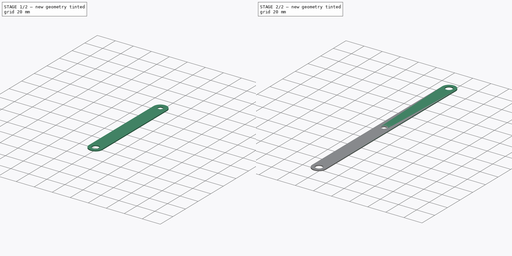
[diagram: build sequence overview — one tinted view per stage of 2, left to right]
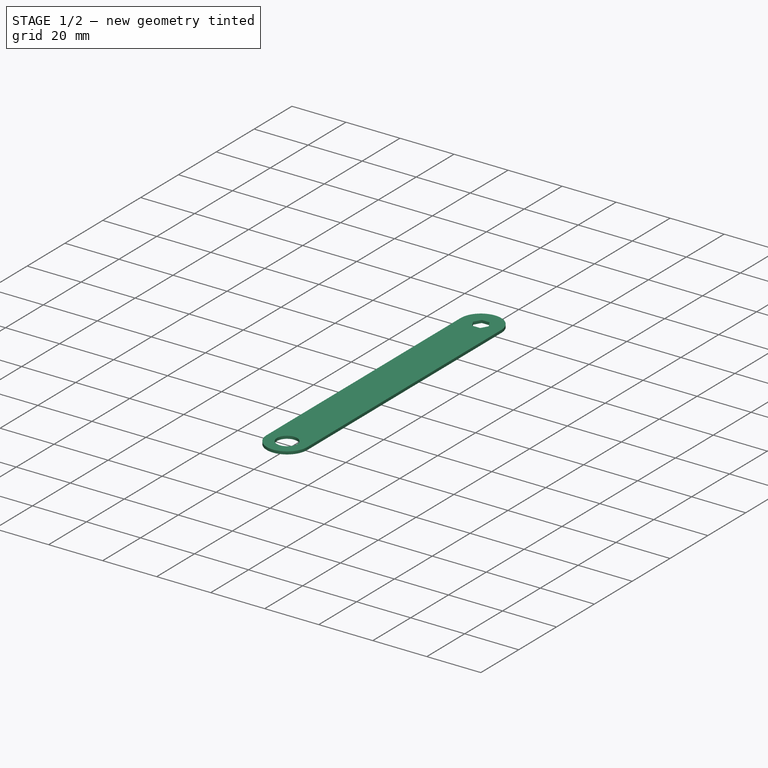
[diagram: stage 1 of 2 — iso view after this stage's code; geometry added in this stage tinted green]
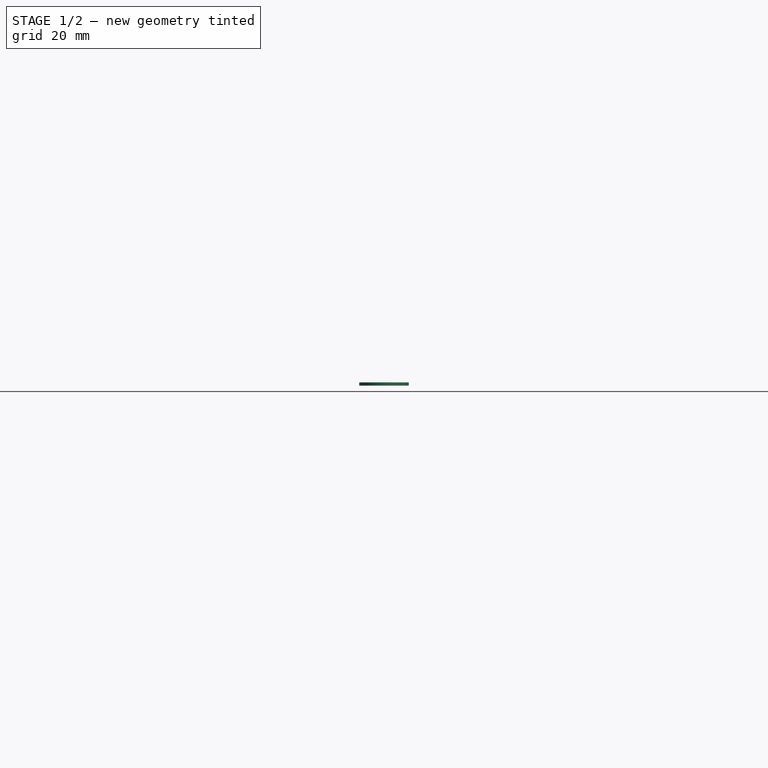
[diagram: stage 1 of 2 — front view after this stage's code; geometry added in this stage tinted green]
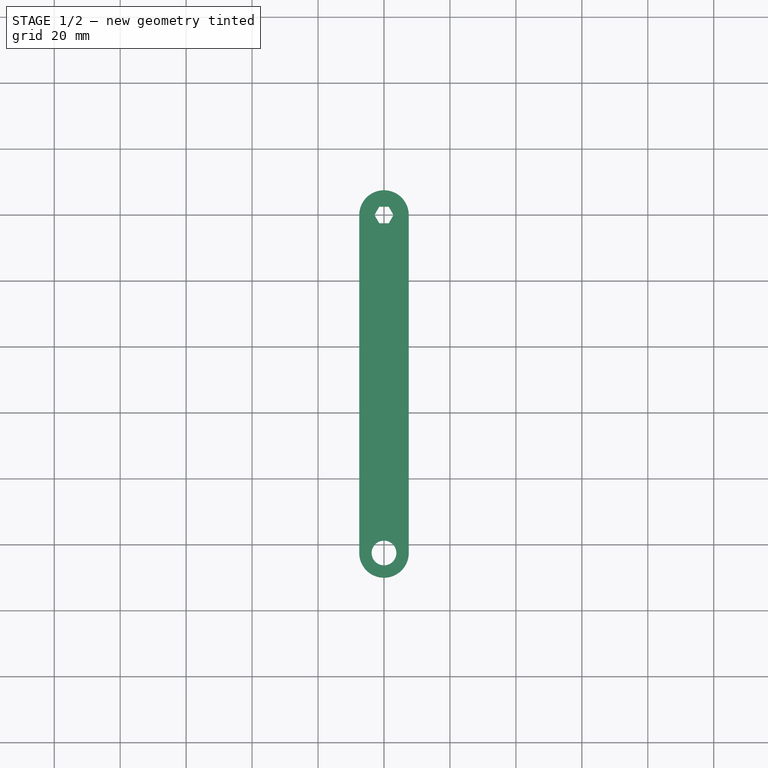
[diagram: stage 1 of 2 — top view after this stage's code; geometry added in this stage tinted green]
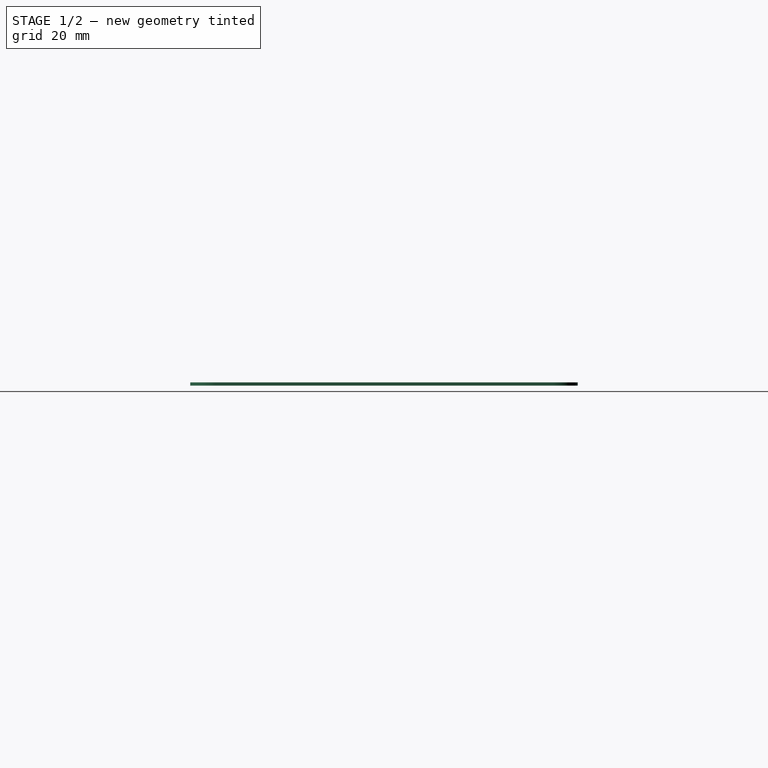
[diagram: stage 1 of 2 — right view after this stage's code; geometry added in this stage tinted green]
FCSTD DOCUMENT  (FreeCAD 0.20R7_voidlinux)
Label: Arm
License: All rights reserved
LicenseURL: http://en.wikipedia.org/wiki/All_rights_reserved
objects: Sketcher::SketchObject×3, PartDesign::Pad×3, PartDesign::Body×3, Spreadsheet::Sheet×1
note: 12 computed .brp shape members not serialized (recipe doc carries the construction recipe); baked Part::Feature solids carry a one-line shape summary decoded from their .brp

FEATURE [PartDesign::Body] Body  label="FullLength"
  Group = -> [Sketch,Pad]
  Origin = -> Origin
  Tip = -> Pad
FEATURE [Sketcher::SketchObject] Sketch001
  FullyConstrained = true
  MapMode = 5
  Support = -> [XY_Plane001]
  expr: Constraints[10] = Spreadsheet.Length / 2
  expr: Constraints[13] = Spreadsheet.Width / 2
  expr: Constraints[32] = Spreadsheet.HoleRadius
  expr: Constraints[34] = Spreadsheet.HoleRadius
  expr: Constraints[39] = Spreadsheet.HoleRadius
  expr: Constraints[6] = Spreadsheet.Width
  sketch-geometry (15):
    g0: Circle CenterX=0 CenterY=0 CenterZ=0 NormalX=0 NormalY=0 NormalZ=1 AngleXU=0 Radius=7.5
    g1: LineSegment StartX=0 StartY=0 StartZ=0 EndX=7.5 EndY=0 EndZ=0
    g2: LineSegment StartX=0 StartY=0 StartZ=0 EndX=-7.5 EndY=1e-15 EndZ=0
    g3: LineSegment StartX=7.5 StartY=0 StartZ=0 EndX=7.5 EndY=-110 EndZ=0
    g4: LineSegment StartX=7.5 StartY=-110 StartZ=0 EndX=0 EndY=-110 EndZ=0
    g5: LineSegment StartX=0 StartY=-110 StartZ=0 EndX=0 EndY=-102.5 EndZ=0
    g6: Circle CenterX=0 CenterY=-102.5 CenterZ=0 NormalX=0 NormalY=0 NormalZ=1 AngleXU=0 Radius=7.5
    g7: LineSegment StartX=-7.5 StartY=1e-15 StartZ=0 EndX=-7.5 EndY=-102.5 EndZ=0
    g8: LineSegment StartX=7.5 StartY=0 StartZ=0 EndX=7.5 EndY=-102.5 EndZ=0
    g9: ArcOfCircle CenterX=0 CenterY=0 CenterZ=0 NormalX=0 NormalY=0 NormalZ=1 AngleXU=0 Radius=7.5 StartAngle=0 EndAngle=3.14159
    g10: ArcOfCircle CenterX=-7e-16 CenterY=-102.5 CenterZ=0 NormalX=0 NormalY=0 NormalZ=1 AngleXU=0 Radius=7.5 StartAngle=3.14159 EndAngle=6.28319
    g11: Circle CenterX=-7e-16 CenterY=-102.5 CenterZ=0 NormalX=0 NormalY=0 NormalZ=1 AngleXU=0 Radius=3.75
    g12: LineSegment StartX=-7e-16 StartY=-102.5 StartZ=0 EndX=-7e-16 EndY=-98.75 EndZ=0
    g13: Circle CenterX=0 CenterY=0 CenterZ=0 NormalX=0 NormalY=0 NormalZ=1 AngleXU=0 Radius=3.75
    g14: LineSegment StartX=0 StartY=0 StartZ=0 EndX=0 EndY=3.75 EndZ=0
  constraints (41):
    c: Coincident(g0,g-1)
    c: Coincident(g1,g0)
    c: PointOnObject(g1,g0)
    c: Horizontal(g1)
    c: Coincident(g2,g0)
    c: PointOnObject(g2,g-1)
    c: Distance(g2,g1) = 15
    c: PointOnObject(g2,g0)
    c: Coincident(g3,g1)
    c: Vertical(g3)
    c: Distance(g3) = 110
    c: Coincident(g4,g3)
    c: Horizontal(g4)
    c: Distance(g4) = 7.5
    c: Coincident(g5,g4)
    c: PointOnObject(g5,g-2)
    c: Equal(g5,g4)
    c: Coincident(g6,g5)
    c: Tangent(g6,g3)
    c: Coincident(g7,g2)
    c: PointOnObject(g7,g6)
    c: Vertical(g7)
    c: Coincident(g8,g1)
    c: PointOnObject(g8,g6)
    c: Vertical(g8)
    c: Coincident(g9,g7)
    c: Coincident(g9,g8)
    c: Tangent(g9,g0)
    c: Coincident(g10,g7)
    c: Coincident(g10,g8)
    c: Tangent(g10,g6)
    c: Coincident(g12,g10)
    c: PointOnObject(g12,g11) = 3.75
    c: Vertical(g12)
    c: Distance(g12) = 3.75
    c: Coincident(g13,g9)
    c: Coincident(g14,g9)
    c: PointOnObject(g14,g13)
    c: Vertical(g14)
    c: Distance(g14) = 3.75
    c: Coincident(g11,g10)
FEATURE [PartDesign::Pad] Pad001
  Direction = (0,0,1)
  Length = 1
  Length2 = 10
  Profile = -> Sketch001
  ReferenceAxis = -> Sketch001 [N_Axis]
  Type = 0
  expr: Length = Spreadsheet.Thickness
FEATURE [PartDesign::Body] Body001  label="HalfLength"
  Group = -> [Sketch001,Pad001]
  Origin = -> Origin001
  Placement = pos=(20,0,0) rot=(0,0,1;0rad)
  Tip = -> Pad001
FEATURE [Sketcher::SketchObject] Sketch002
  FullyConstrained = true
  MapMode = 5
  Support = -> [XY_Plane002]
  expr: Constraints[10] = Spreadsheet.Length / 2
  expr: Constraints[13] = Spreadsheet.Width / 2
  expr: Constraints[38] = Spreadsheet.AxleSize
  expr: Constraints[43] = Spreadsheet.HoleRadius
  expr: Constraints[6] = Spreadsheet.Width
  sketch-geometry (20):
    g0: Circle CenterX=0 CenterY=-5e-16 CenterZ=0 NormalX=0 NormalY=0 NormalZ=1 AngleXU=0 Radius=7.5
    g1: LineSegment StartX=0 StartY=-5e-16 StartZ=0 EndX=7.5 EndY=-5e-16 EndZ=0
    g2: LineSegment StartX=0 StartY=-5e-16 StartZ=0 EndX=-7.5 EndY=-6.2e-15 EndZ=0
    g3: LineSegment StartX=7.5 StartY=-5e-16 StartZ=0 EndX=7.5 EndY=-110 EndZ=0
    g4: LineSegment StartX=7.5 StartY=-110 StartZ=0 EndX=0 EndY=-110 EndZ=0
    g5: LineSegment StartX=0 StartY=-110 StartZ=0 EndX=0 EndY=-102.5 EndZ=0
    g6: Circle CenterX=0 CenterY=-102.5 CenterZ=0 NormalX=0 NormalY=0 NormalZ=1 AngleXU=0 Radius=7.5
    g7: LineSegment StartX=2.88675 StartY=0 StartZ=0 EndX=1.44338 EndY=2.5 EndZ=0
    g8: LineSegment StartX=1.44338 StartY=2.5 StartZ=0 EndX=-1.44338 EndY=2.5 EndZ=0
    g9: LineSegment StartX=-1.44338 StartY=2.5 StartZ=0 EndX=-2.88675 EndY=0 EndZ=0
    g10: LineSegment StartX=-2.88675 StartY=0 StartZ=0 EndX=-1.44338 EndY=-2.5 EndZ=0
    g11: LineSegment StartX=-1.44338 StartY=-2.5 StartZ=0 EndX=1.44338 EndY=-2.5 EndZ=0
    g12: LineSegment StartX=1.44338 StartY=-2.5 StartZ=0 EndX=2.88675 EndY=0 EndZ=0
    g13: Circle CenterX=0 CenterY=-5e-16 CenterZ=0 NormalX=0 NormalY=0 NormalZ=1 AngleXU=0 Radius=2.88675
    g14: Circle CenterX=0 CenterY=-102.5 CenterZ=0 NormalX=0 NormalY=0 NormalZ=1 AngleXU=0 Radius=3.75
    g15: LineSegment StartX=0 StartY=-102.5 StartZ=0 EndX=3.75 EndY=-102.5 EndZ=0
    g16: LineSegment StartX=-7.5 StartY=-102.5 StartZ=0 EndX=-7.5 EndY=0 EndZ=0
    g17: LineSegment StartX=7.5 StartY=-5e-16 StartZ=0 EndX=7.5 EndY=-102.5 EndZ=0
    g18: ArcOfCircle CenterX=-4e-16 CenterY=-102.5 CenterZ=0 NormalX=0 NormalY=0 NormalZ=1 AngleXU=0 Radius=7.5 StartAngle=3.14159 EndAngle=6.28319
    g19: ArcOfCircle CenterX=3e-16 CenterY=1.128e-13 CenterZ=0 NormalX=0 NormalY=0 NormalZ=1 AngleXU=0 Radius=7.5 StartAngle=-1.51e-14 EndAngle=3.14159
  constraints (52):
    c: Coincident(g0,g-1)
    c: Coincident(g1,g0)
    c: PointOnObject(g1,g0)
    c: Horizontal(g1)
    c: Coincident(g2,g0)
    c: PointOnObject(g2,g-1)
    c: Distance(g2,g1) = 15
    c: PointOnObject(g2,g0)
    c: Coincident(g3,g1)
    c: Vertical(g3)
    c: Distance(g3) = 110
    c: Coincident(g4,g3)
    c: Horizontal(g4)
    c: Distance(g4) = 7.5
    c: Coincident(g5,g4)
    c: PointOnObject(g5,g-2)
    c: Equal(g5,g4)
    c: Coincident(g6,g5)
    c: Tangent(g6,g3)
    c: Coincident(g7,g8)
    c: Coincident(g8,g9)
    c: Coincident(g9,g10)
    c: Coincident(g10,g11)
    c: Coincident(g11,g12)
    c: Coincident(g12,g7)
    c: Equal(g7, g8-g12) x5
    c: PointOnObject(g7,g13)
    c: PointOnObject(g8,g13)
    c: PointOnObject(g9,g13)
    c: PointOnObject(g10,g13)
    c: PointOnObject(g11,g13)
    c: PointOnObject(g12,g13)
    c: Coincident(g13,g0)
    c: PointOnObject(g12,g1)
    c: Distance(g8,g10) = 5
    c: Coincident(g14,g5)
    c: Coincident(g15,g14)
    c: PointOnObject(g15,g14)
    c: Horizontal(g15)
    c: Distance(g15) = 3.75
    c: PointOnObject(g16,g6)
    c: Coincident(g16,g2)
    c: Vertical(g16)
    c: Coincident(g17,g1)
    c: PointOnObject(g17,g6)
    c: Vertical(g17)
    c: Coincident(g18,g16)
    c: Coincident(g18,g17)
    c: Tangent(g18,g6)
    c: Coincident(g19,g16)
    c: Coincident(g19,g17)
    c: Tangent(g19,g0)
FEATURE [PartDesign::Pad] Pad002
  Direction = (0,0,1)
  Length = 1
  Length2 = 10
  Profile = -> Sketch002
  ReferenceAxis = -> Sketch002 [N_Axis]
  Type = 0
  expr: Length = Spreadsheet.Thickness
FEATURE [PartDesign::Body] Body002  label="HalfLengthAxle"
  Group = -> [Sketch002,Pad002]
  Origin = -> Origin002
  Placement = pos=(40,0,0) rot=(0,0,1;0rad)
  Tip = -> Pad002
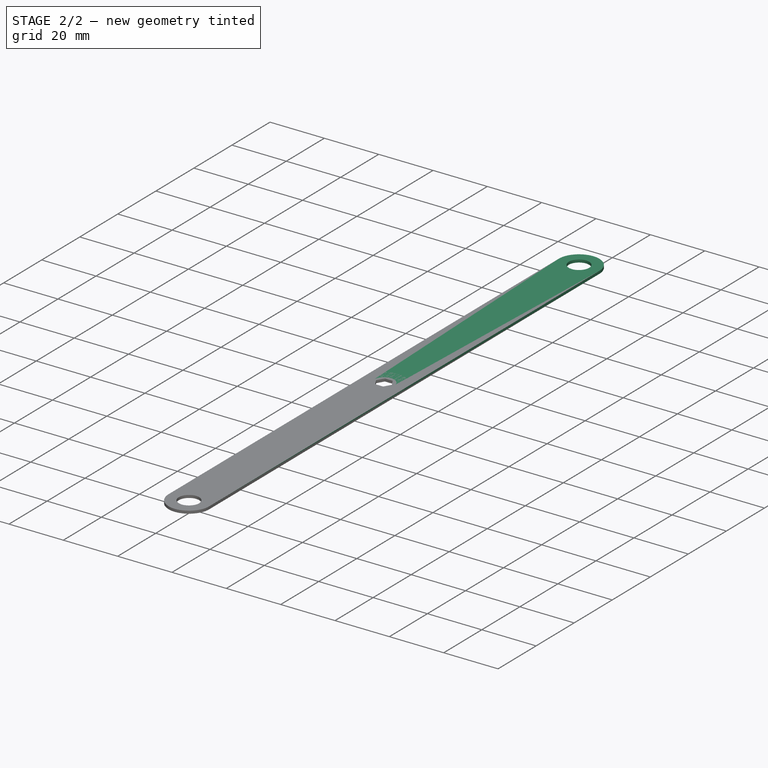
[diagram: stage 2 of 2 — iso view after this stage's code; geometry added in this stage tinted green]
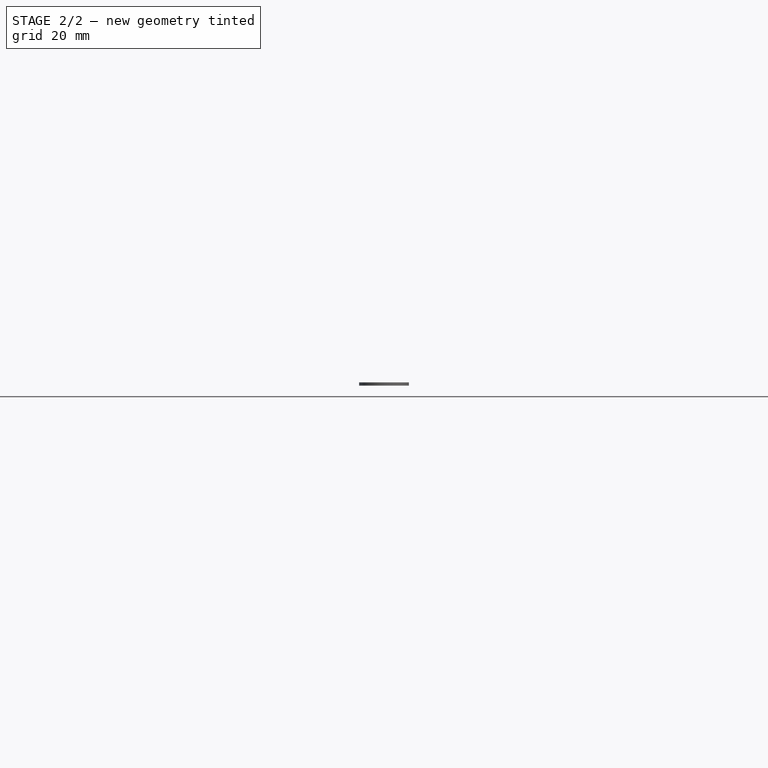
[diagram: stage 2 of 2 — front view after this stage's code; geometry added in this stage tinted green]
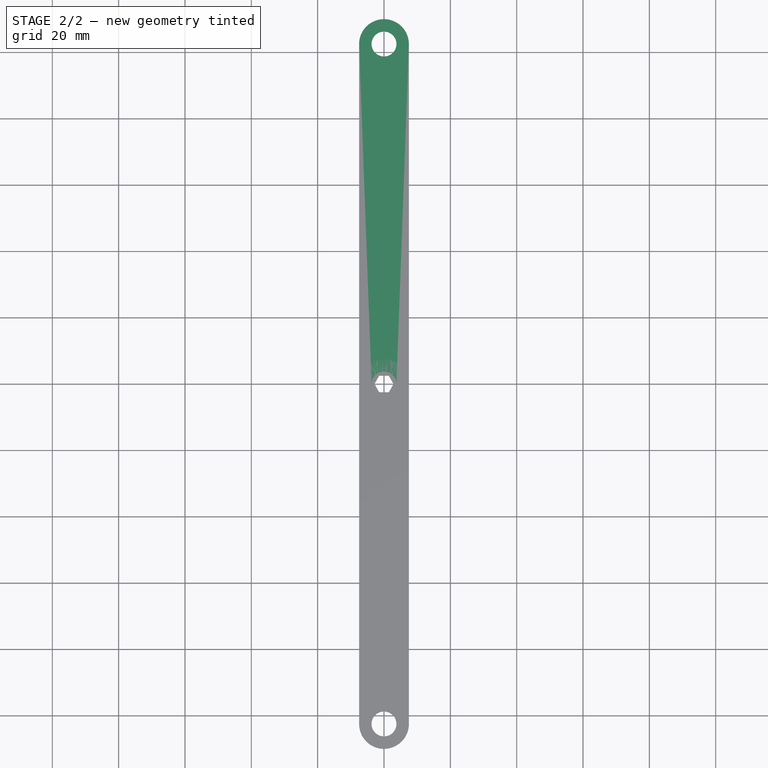
[diagram: stage 2 of 2 — top view after this stage's code; geometry added in this stage tinted green]
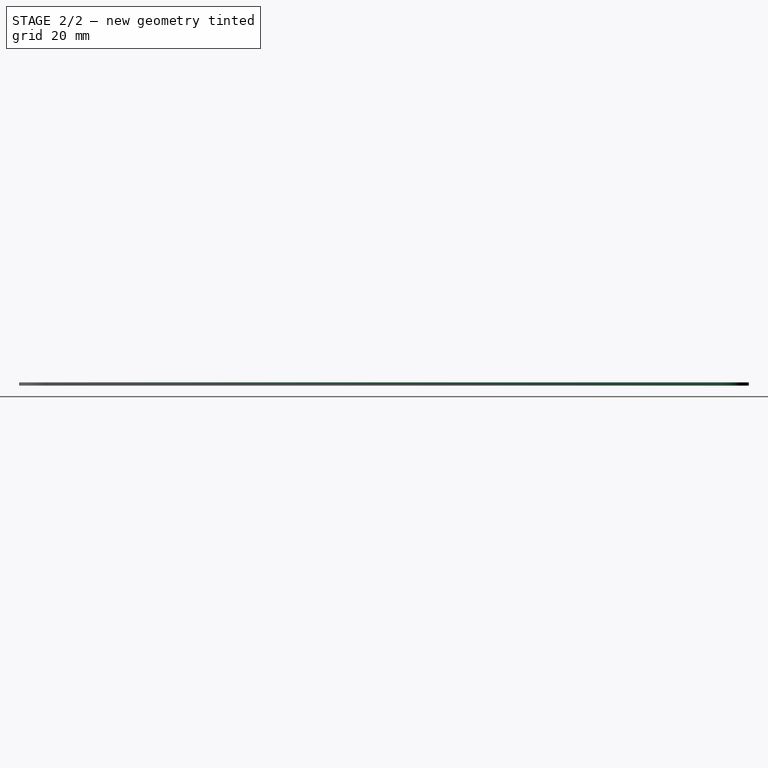
[diagram: stage 2 of 2 — right view after this stage's code; geometry added in this stage tinted green]
FEATURE [Sketcher::SketchObject] Sketch
  FullyConstrained = true
  MapMode = 5
  Support = -> [XY_Plane]
  expr: Constraints[10] = Spreadsheet.Length
  expr: Constraints[11] = Spreadsheet.Width
  expr: Constraints[40] = Spreadsheet.HoleRadius
  sketch-geometry (21):
    g0: LineSegment StartX=-7.5 StartY=-110 StartZ=0 EndX=-7.5 EndY=110 EndZ=0
    g1: LineSegment StartX=-7.5 StartY=110 StartZ=0 EndX=7.5 EndY=110 EndZ=0
    g2: LineSegment StartX=7.5 StartY=110 StartZ=0 EndX=7.5 EndY=-110 EndZ=0
    g3: LineSegment StartX=7.5 StartY=-110 StartZ=0 EndX=-7.5 EndY=-110 EndZ=0
    g4: GeomPoint X=2.16e-14 Y=4.538e-13 Z=0
    g5: Circle CenterX=7.3e-15 CenterY=102.5 CenterZ=0 NormalX=0 NormalY=0 NormalZ=1 AngleXU=0 Radius=7.5
    g6: Circle CenterX=-3e-16 CenterY=-102.5 CenterZ=0 NormalX=0 NormalY=0 NormalZ=1 AngleXU=0 Radius=7.5
    g7: GeomPoint X=-7.5 Y=102.5 Z=0
    g8: GeomPoint X=7.5 Y=102.5 Z=0
    g9: GeomPoint X=-7.5 Y=-102.5 Z=0
    g10: GeomPoint X=7.5 Y=-102.5 Z=0
    g11: ArcOfCircle CenterX=8.4e-15 CenterY=102.5 CenterZ=0 NormalX=0 NormalY=0 NormalZ=1 AngleXU=0 Radius=7.5 StartAngle=6.28318 EndAngle=9.42478
    g12: ArcOfCircle CenterX=1.5e-15 CenterY=-102.5 CenterZ=0 NormalX=0 NormalY=0 NormalZ=1 AngleXU=0 Radius=7.5 StartAngle=3.14159 EndAngle=6.28319
    g13: LineSegment StartX=7.5 StartY=102.5 StartZ=0 EndX=7.5 EndY=-102.5 EndZ=0
    g14: LineSegment StartX=-7.5 StartY=102.5 StartZ=0 EndX=-7.5 EndY=-102.5 EndZ=0
    g15: Circle CenterX=8.4e-15 CenterY=102.5 CenterZ=0 NormalX=0 NormalY=0 NormalZ=1 AngleXU=0 Radius=3.75
    g16: LineSegment StartX=8.4e-15 StartY=102.5 StartZ=0 EndX=3.75 EndY=102.5 EndZ=0
    g17: Circle CenterX=1.5e-15 CenterY=-102.5 CenterZ=0 NormalX=0 NormalY=0 NormalZ=1 AngleXU=0 Radius=3.75
    g18: LineSegment StartX=1.5e-15 StartY=-102.5 StartZ=0 EndX=3.75 EndY=-102.5 EndZ=0
    g19: Circle CenterX=2.16e-14 CenterY=4.538e-13 CenterZ=0 NormalX=0 NormalY=0 NormalZ=1 AngleXU=0 Radius=3.75
    g20: LineSegment StartX=2.16e-14 StartY=4.538e-13 StartZ=0 EndX=3.75 EndY=4.538e-13 EndZ=0
  constraints (51):
    c: Coincident(g0,g1)
    c: Coincident(g1,g2)
    c: Coincident(g2,g3)
    c: Coincident(g3,g0)
    c: Horizontal(g1)
    c: Horizontal(g3)
    c: Vertical(g0)
    c: Vertical(g2)
    c: Symmetric(g1,g0,g4)
    c: Coincident(g4,g-1)
    c: Distance(g2) = 220
    c: Distance(g1) = 15
    c: Tangent(g5,g0)
    c: Tangent(g5,g1)
    c: Tangent(g5,g2)
    c: Tangent(g6,g0)
    c: Tangent(g6,g3)
    c: Tangent(g6,g2)
    c: PointOnObject(g7,g0)
    c: PointOnObject(g7,g5)
    c: PointOnObject(g8,g2)
    c: PointOnObject(g8,g5)
    c: PointOnObject(g9,g0)
    c: PointOnObject(g10,g2)
    c: PointOnObject(g10,g6)
    c: PointOnObject(g9,g6)
    c: Coincident(g11,g7)
    c: Coincident(g11,g8)
    c: Tangent(g11,g5)
    c: Coincident(g12,g9)
    c: Coincident(g12,g10)
    c: Tangent(g12,g6)
    c: Coincident(g13,g11)
    c: Coincident(g13,g12)
    c: Coincident(g14,g11)
    c: Coincident(g14,g12)
    c: Coincident(g15,g11)
    c: Coincident(g16,g11)
    c: PointOnObject(g16,g15)
    c: Horizontal(g16)
    c: Distance(g16) = 3.75
    c: Coincident(g17,g12)
    c: Coincident(g18,g12)
    c: PointOnObject(g18,g17)
    c: Horizontal(g18)
    c: Equal(g18,g16)
    c: Coincident(g19,g4)
    c: Coincident(g20,g19)
    c: PointOnObject(g20,g19)
    c: Horizontal(g20)
    c: Equal(g20,g16)
FEATURE [Spreadsheet::Sheet] Spreadsheet
  cells = A1=Width; B1(Width)=15; A2=Length; B2(Length)=220; A3=Thickness; B3(Thickness)=1; A4=HoleSize; B4(HoleDiameter)=7.5; C4(HoleRadius)==B4 / 2; A5=AxleSize; B5(AxleSize)=5
FEATURE [PartDesign::Pad] Pad
  Direction = (0,0,1)
  Length = 1
  Length2 = 10
  Profile = -> Sketch
  ReferenceAxis = -> Sketch [N_Axis]
  Type = 0
  expr: Length = Spreadsheet.Thickness
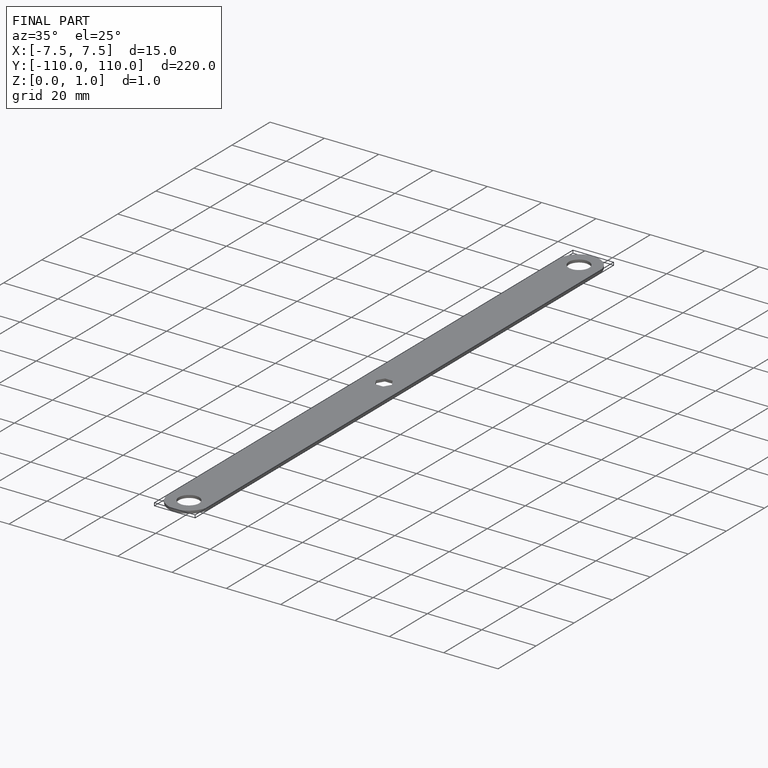
[diagram: finished part — iso view with bounding-box wireframe]
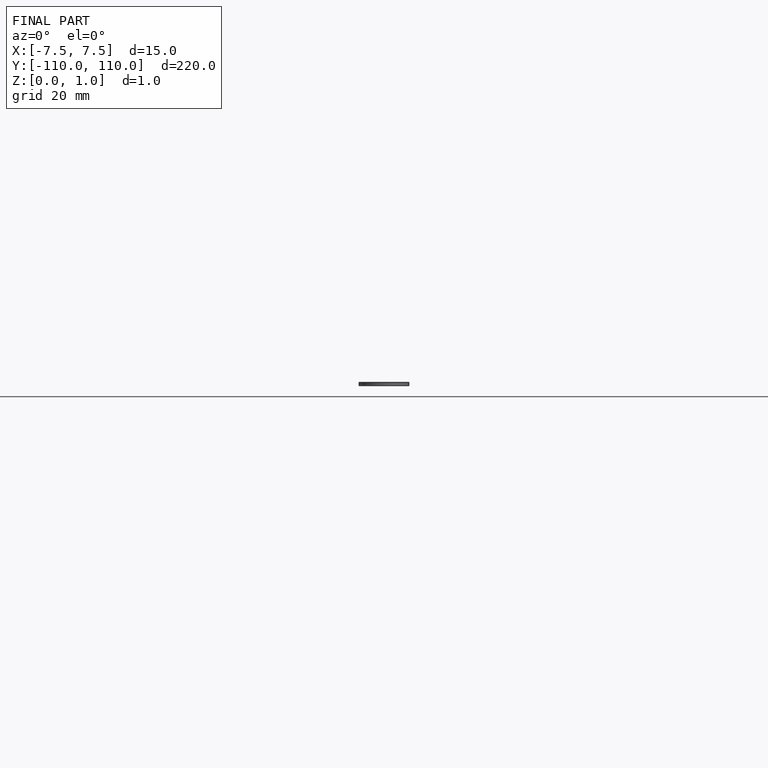
[diagram: finished part — front view with bounding-box wireframe]
